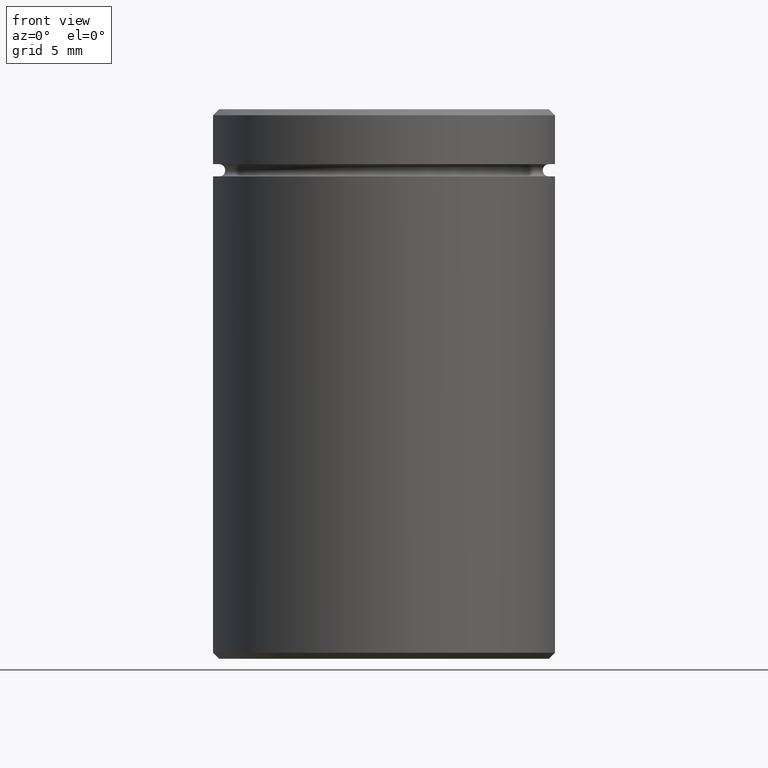
[diagram: clean part render]
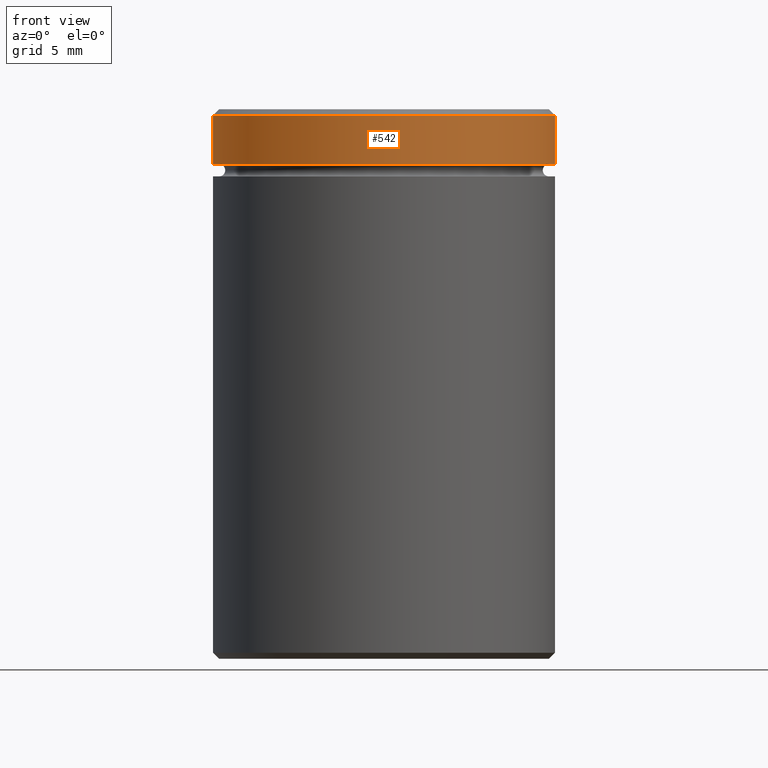
[diagram: same view with one face highlighted and labeled with its STEP entity id]
A machine part, front view. The second image highlights one B-rep face of the part: STEP entity #542.
In plain terms, the highlighted cylindrical surface (partial cylindrical patch) has radius 14 mm, axis along (-0, -0, 1).
Its self-contained STEP definition (entity closure, byte-faithful):
#11 = DIRECTION ( 'NONE',  ( -0.000000000000000000, -0.000000000000000000, 1.000000000000000000 ) ) ;
#36 = EDGE_CURVE ( 'NONE', #141, #133, #65, .T. ) ;
#37 = DIRECTION ( 'NONE',  ( 1.000000000000000000, 0.000000000000000000, 0.000000000000000000 ) ) ;
#49 = VERTEX_POINT ( 'NONE', #535 ) ;
#51 = FACE_OUTER_BOUND ( 'NONE', #442, .T. ) ;
#60 = VERTEX_POINT ( 'NONE', #485 ) ;
#61 = DIRECTION ( 'NONE',  ( -0.000000000000000000, -0.000000000000000000, 1.000000000000000000 ) ) ;
#65 = CIRCLE ( 'NONE', #543, 14.00000000000000000 ) ;
#69 = ORIENTED_EDGE ( 'NONE', *, *, #116, .T. ) ;
#71 = CARTESIAN_POINT ( 'NONE',  ( -14.00000000000000000, 1.714505518806294638E-15, 0.000000000000000000 ) ) ;
#81 = VECTOR ( 'NONE', #115, 1000.000000000000000 ) ;
#104 = ORIENTED_EDGE ( 'NONE', *, *, #315, .F. ) ;
#115 = DIRECTION ( 'NONE',  ( -0.000000000000000000, -0.000000000000000000, 1.000000000000000000 ) ) ;
#116 = EDGE_CURVE ( 'NONE', #133, #49, #526, .T. ) ;
#124 = CARTESIAN_POINT ( 'NONE',  ( 0.000000000000000000, 0.000000000000000000, -4.500000000000000888 ) ) ;
#133 = VERTEX_POINT ( 'NONE', #209 ) ;
#141 = VERTEX_POINT ( 'NONE', #435 ) ;
#154 = CARTESIAN_POINT ( 'NONE',  ( 0.000000000000000000, 0.000000000000000000, -0.5000000000000022204 ) ) ;
#209 = CARTESIAN_POINT ( 'NONE',  ( 14.00000000000000000, 0.000000000000000000, -4.500000000000000888 ) ) ;
#229 = DIRECTION ( 'NONE',  ( 1.000000000000000000, 0.000000000000000000, 0.000000000000000000 ) ) ;
#246 = EDGE_CURVE ( 'NONE', #49, #60, #384, .T. ) ;
#252 = LINE ( 'NONE', #71, #81 ) ;
#293 = AXIS2_PLACEMENT_3D ( 'NONE', #154, #413, #467 ) ;
#297 = DIRECTION ( 'NONE',  ( -0.000000000000000000, -0.000000000000000000, 1.000000000000000000 ) ) ;
#305 = CARTESIAN_POINT ( 'NONE',  ( 14.00000000000000000, 0.000000000000000000, 0.000000000000000000 ) ) ;
#315 = EDGE_CURVE ( 'NONE', #141, #60, #252, .T. ) ;
#331 = AXIS2_PLACEMENT_3D ( 'NONE', #539, #11, #229 ) ;
#384 = CIRCLE ( 'NONE', #293, 14.00000000000000000 ) ;
#396 = CYLINDRICAL_SURFACE ( 'NONE', #331, 14.00000000000000000 ) ;
#413 = DIRECTION ( 'NONE',  ( 0.000000000000000000, 0.000000000000000000, -1.000000000000000000 ) ) ;
#435 = CARTESIAN_POINT ( 'NONE',  ( -14.00000000000000000, 1.714505518806294638E-15, -4.500000000000000888 ) ) ;
#442 = EDGE_LOOP ( 'NONE', ( #104, #567, #69, #489 ) ) ;
#467 = DIRECTION ( 'NONE',  ( 1.000000000000000000, 0.000000000000000000, 0.000000000000000000 ) ) ;
#485 = CARTESIAN_POINT ( 'NONE',  ( -14.00000000000000000, 1.714505518806294638E-15, -0.5000000000000022204 ) ) ;
#489 = ORIENTED_EDGE ( 'NONE', *, *, #246, .T. ) ;
#526 = LINE ( 'NONE', #305, #563 ) ;
#535 = CARTESIAN_POINT ( 'NONE',  ( 14.00000000000000000, 0.000000000000000000, -0.5000000000000022204 ) ) ;
#539 = CARTESIAN_POINT ( 'NONE',  ( 0.000000000000000000, 0.000000000000000000, 0.000000000000000000 ) ) ;
#542 = ADVANCED_FACE ( 'NONE', ( #51 ), #396, .T. ) ;
#543 = AXIS2_PLACEMENT_3D ( 'NONE', #124, #297, #37 ) ;
#563 = VECTOR ( 'NONE', #61, 1000.000000000000000 ) ;
#567 = ORIENTED_EDGE ( 'NONE', *, *, #36, .T. ) ;